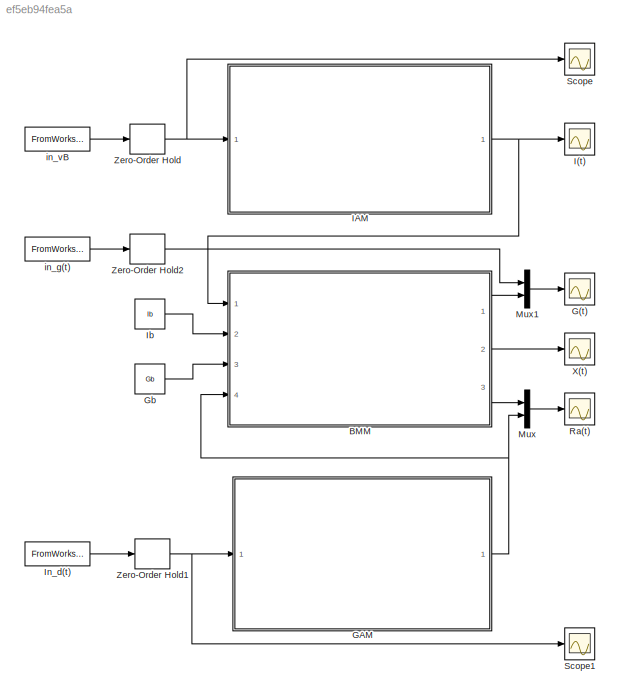
MODEL slx_ef5eb94fea5a
KIND model
CONFIG AbsTol = auto
CONFIG EnableMultiTasking = off
CONFIG FixedStep = 1
CONFIG MaxStep = auto
CONFIG MinStep = auto
CONFIG RelTol = 1e-3
CONFIG SampleTimeConstraint = Unconstrained
CONFIG SolverName = FixedStepAuto
CONFIG StartTime = 400
CONFIG StopTime = 1400
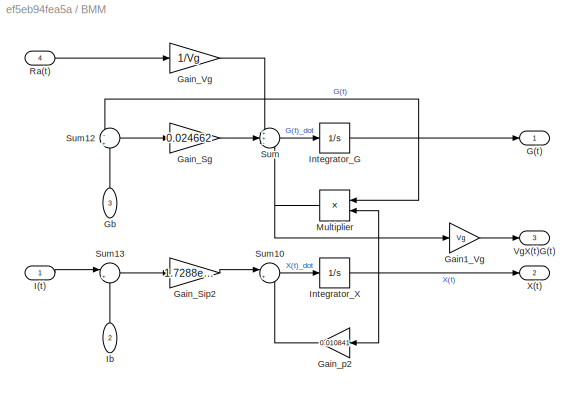
BLOCK [SubSystem] BMM
  Ports = [4, 3]
  RequestExecContextInheritance = off
BLOCK [Outport] BMM/G(t)
BLOCK [Gain] BMM/Gain1_Vg
  Gain = Vg
BLOCK [Gain] BMM/Gain_Sg
  Gain = 0.024662
  Multiplication = Matrix(K*u)
BLOCK [Gain] BMM/Gain_Sip2
  Gain = 1.7288e-05
  Multiplication = Matrix(K*u)
BLOCK [Gain] BMM/Gain_Vg
  Gain = 1/Vg
BLOCK [Gain] BMM/Gain_p2
  Gain = 0.010841
BLOCK [Inport] BMM/Gb
  NameLocation = right
  Port = 3
BLOCK [Inport] BMM/I(t)
BLOCK [Inport] BMM/Ib
  NameLocation = right
  Port = 2
BLOCK [Integrator] BMM/Integrator_G
  InitialCondition = G0
  LowerSaturationLimit = 0
  Ports = [1, 1]
  UpperSaturationLimit = 100
BLOCK [Integrator] BMM/Integrator_X
  InitialCondition = X0
  Ports = [1, 1]
BLOCK [Product] BMM/Multiplier
  Ports = [2, 1]
BLOCK [Inport] BMM/Ra(t)
  Port = 4
BLOCK [Sum] BMM/Sum
  Inputs = ++-
  Ports = [3, 1]
BLOCK [Sum] BMM/Sum10
  Inputs = |+-
  Ports = [2, 1]
BLOCK [Sum] BMM/Sum12
  Inputs = -|+
  Ports = [2, 1]
BLOCK [Sum] BMM/Sum13
  Inputs = |+-
  Ports = [2, 1]
BLOCK [Outport] BMM/VgX(t)G(t)
  Port = 3
BLOCK [Outport] BMM/X(t)
  Port = 2
BLOCK [Scope] G(t)
  Floating = off
  NumInputPorts = 1
  Ports = [1]
  ScopeSpecificationString = Simulink.scopes.TimeScopeBlockCfg('CurrentConfiguration', extmgr.ConfigurationSet(extmgr.Configuration('Core','General UI',true),extmgr.Configuration('Core','Source UI',true),extmgr.Configuration('Sources','WiredSimulink',true,'DataLoggingVariableName','G_est','DataLogging',true,'DataLoggingSaveFormat','Array'),extmgr.Configuration('Visuals','Time Domain',true,'SerializedDisplays',{struct('MinYLim...<+1574ch>
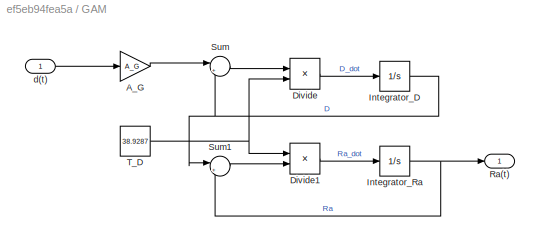
BLOCK [SubSystem] GAM
  Ports = [1, 1]
  RequestExecContextInheritance = off
BLOCK [Gain] GAM/A_G
  Gain = A_G
BLOCK [Product] GAM/Divide
  Inputs = */
  Ports = [2, 1]
BLOCK [Product] GAM/Divide1
  Inputs = /*
  Ports = [2, 1]
BLOCK [Integrator] GAM/Integrator_D
  Ports = [1, 1]
BLOCK [Integrator] GAM/Integrator_Ra
  Ports = [1, 1]
BLOCK [Outport] GAM/Ra(t)
BLOCK [Sum] GAM/Sum
  Inputs = |+-
  Ports = [2, 1]
BLOCK [Sum] GAM/Sum1
  Inputs = |+-
  Ports = [2, 1]
BLOCK [Constant] GAM/T_D
  Value = 38.9287
BLOCK [Inport] GAM/d(t)
BLOCK [Constant] Gb
  SampleTime = 0
  Value = Gb
BLOCK [Scope] I(t)
  Floating = off
  NumInputPorts = 1
  Ports = [1]
  ScopeSpecificationString = Simulink.scopes.TimeScopeBlockCfg('CurrentConfiguration', extmgr.ConfigurationSet(extmgr.Configuration('Core','General UI',true),extmgr.Configuration('Core','Source UI',true),extmgr.Configuration('Sources','WiredSimulink',true,'DataLoggingVariableName','I_est','DataLogging',true,'DataLoggingSaveFormat','Array'),extmgr.Configuration('Visuals','Time Domain',true,'SerializedDisplays',{struct('MinYLim...<+1528ch>
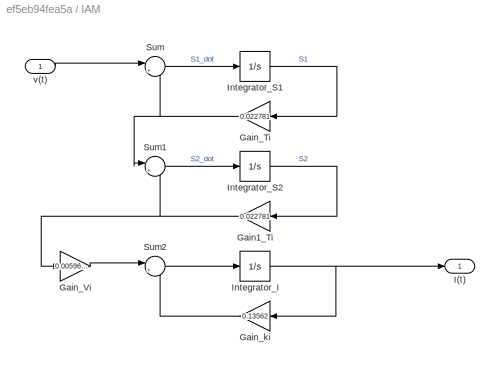
BLOCK [SubSystem] IAM
  Ports = [1, 1]
  RequestExecContextInheritance = off
BLOCK [Gain] IAM/Gain1_Ti
  Gain = 0.022781
BLOCK [Gain] IAM/Gain_Ti
  Gain = 0.022781
BLOCK [Gain] IAM/Gain_Vi
  Gain = 0.0059651
BLOCK [Gain] IAM/Gain_ki
  Gain = 0.13562
BLOCK [Outport] IAM/I(t)
BLOCK [Integrator] IAM/Integrator_I
  InitialCondition = 12.3686
  LimitOutput = on
  LowerSaturationLimit = 0
  Ports = [1, 1]
  UpperSaturationLimit = 1000
BLOCK [Integrator] IAM/Integrator_S1
  InitialCondition = 12344.6425
  Ports = [1, 1]
BLOCK [Integrator] IAM/Integrator_S2
  InitialCondition = 12344.6425
  Ports = [1, 1]
BLOCK [Sum] IAM/Sum
  Inputs = |+-
  Ports = [2, 1]
BLOCK [Sum] IAM/Sum1
  Inputs = |+-
  Ports = [2, 1]
BLOCK [Sum] IAM/Sum2
  Inputs = |+-
  Ports = [2, 1]
BLOCK [Inport] IAM/v(t)
BLOCK [Constant] Ib
  SampleTime = 0
  Value = Ib
BLOCK [FromWorkspace] In_d(t)
  VariableName = d_sim
BLOCK [Mux] Mux
  DisplayOption = bar
  Inputs = 2
  Ports = [2, 1]
BLOCK [Mux] Mux1
  DisplayOption = bar
  Inputs = 2
  Ports = [2, 1]
BLOCK [Scope] Ra(t)
  Floating = off
  NumInputPorts = 1
  Ports = [1]
  ScopeSpecificationString = Simulink.scopes.TimeScopeBlockCfg('CurrentConfiguration', extmgr.ConfigurationSet(extmgr.Configuration('Core','General UI',true),extmgr.Configuration('Core','Source UI',true),extmgr.Configuration('Sources','WiredSimulink',true,'DataLoggingVariableName','Ra_est','DataLogging',true,'DataLoggingSaveFormat','Array'),extmgr.Configuration('Visuals','Time Domain',true,'SerializedDisplays',{struct('MinYLi...<+1616ch>
BLOCK [Scope] Scope
  Floating = off
  NumInputPorts = 1
  Ports = [1]
  ScopeSpecificationString = Simulink.scopes.TimeScopeBlockCfg('CurrentConfiguration', extmgr.ConfigurationSet(extmgr.Configuration('Core','General UI',true),extmgr.Configuration('Core','Source UI',true),extmgr.Configuration('Sources','WiredSimulink',true,'DataLoggingVariableName','ScopeData1','DataLogging',true,'DataLoggingSaveFormat','Array'),extmgr.Configuration('Visuals','Time Domain',true,'SerializedDisplays',{struct('Mi...<+1524ch>
BLOCK [Scope] Scope1
  Floating = off
  NumInputPorts = 1
  Ports = [1]
  ScopeSpecificationString = Simulink.scopes.TimeScopeBlockCfg('CurrentConfiguration', extmgr.ConfigurationSet(extmgr.Configuration('Core','General UI',true),extmgr.Configuration('Core','Source UI',true),extmgr.Configuration('Sources','WiredSimulink',true,'DataLoggingVariableName','ScopeData2'),extmgr.Configuration('Visuals','Time Domain',true,'SerializedDisplays',{struct('MinYLimReal','-6.25','MaxYLimReal','56.25','YLabelRea...<+1434ch>
BLOCK [Scope] X(t)
  Floating = off
  NumInputPorts = 1
  Ports = [1]
  ScopeSpecificationString = Simulink.scopes.TimeScopeBlockCfg('CurrentConfiguration', extmgr.ConfigurationSet(extmgr.Configuration('Core','General UI',true),extmgr.Configuration('Core','Source UI',true),extmgr.Configuration('Sources','WiredSimulink',true,'DataLoggingVariableName','ScopeData2'),extmgr.Configuration('Visuals','Time Domain',true,'SerializedDisplays',{struct('MinYLimReal','-0.04833','MaxYLimReal','0.11819','YLab...<+1421ch>
BLOCK [ZeroOrderHold] Zero-Order Hold
  SampleTime = -1
BLOCK [ZeroOrderHold] Zero-Order Hold1
  SampleTime = -1
BLOCK [ZeroOrderHold] Zero-Order Hold2
  SampleTime = -1
BLOCK [FromWorkspace] in_g(t)
  VariableName = g_sim
BLOCK [FromWorkspace] in_vB
  VariableName = v_sim
LINE BMM/Gain1_Vg:1 -> BMM/VgX(t)G(t):1
LINE BMM/Gain_Sg:1 -> BMM/Sum:2
LINE BMM/Gain_Sip2:1 -> BMM/Sum10:1
LINE BMM/Gain_Vg:1 -> BMM/Sum:1
LINE BMM/Gain_p2:1 -> BMM/Sum10:2
LINE BMM/Gb:1 -> BMM/Sum12:2
LINE BMM/I(t):1 -> BMM/Sum13:1
LINE BMM/Ib:1 -> BMM/Sum13:2
NET BMM/Integrator_G:1 -> BMM/G(t):1, BMM/Multiplier:1, BMM/Sum12:1
NET BMM/Integrator_X:1 -> BMM/Gain_p2:1, BMM/Multiplier:2, BMM/X(t):1
NET BMM/Multiplier:1 -> BMM/Gain1_Vg:1, BMM/Sum:3
LINE BMM/Ra(t):1 -> BMM/Gain_Vg:1
LINE BMM/Sum10:1 -> BMM/Integrator_X:1
LINE BMM/Sum12:1 -> BMM/Gain_Sg:1
LINE BMM/Sum13:1 -> BMM/Gain_Sip2:1
LINE BMM/Sum:1 -> BMM/Integrator_G:1
LINE BMM:1 -> Mux1:2
LINE BMM:2 -> X(t):1
LINE BMM:3 -> Mux:1
LINE GAM/A_G:1 -> GAM/Sum:1
LINE GAM/Divide1:1 -> GAM/Integrator_Ra:1
LINE GAM/Divide:1 -> GAM/Integrator_D:1
NET GAM/Integrator_D:1 -> GAM/Sum1:1, GAM/Sum:2
NET GAM/Integrator_Ra:1 -> GAM/Ra(t):1, GAM/Sum1:2
LINE GAM/Sum1:1 -> GAM/Divide1:2
LINE GAM/Sum:1 -> GAM/Divide:1
NET GAM/T_D:1 -> GAM/Divide1:1, GAM/Divide:2
LINE GAM/d(t):1 -> GAM/A_G:1
NET GAM:1 -> BMM:4, Mux:2
LINE Gb:1 -> BMM:3
NET IAM/Gain1_Ti:1 -> IAM/Gain_Vi:1, IAM/Sum1:2
NET IAM/Gain_Ti:1 -> IAM/Sum1:1, IAM/Sum:2
LINE IAM/Gain_Vi:1 -> IAM/Sum2:1
LINE IAM/Gain_ki:1 -> IAM/Sum2:2
NET IAM/Integrator_I:1 -> IAM/Gain_ki:1, IAM/I(t):1
LINE IAM/Integrator_S1:1 -> IAM/Gain_Ti:1
LINE IAM/Integrator_S2:1 -> IAM/Gain1_Ti:1
LINE IAM/Sum1:1 -> IAM/Integrator_S2:1
LINE IAM/Sum2:1 -> IAM/Integrator_I:1
LINE IAM/Sum:1 -> IAM/Integrator_S1:1
LINE IAM/v(t):1 -> IAM/Sum:1
NET IAM:1 -> BMM:1, I(t):1
LINE Ib:1 -> BMM:2
LINE In_d(t):1 -> Zero-Order Hold1:1
LINE Mux1:1 -> G(t):1
LINE Mux:1 -> Ra(t):1
NET Zero-Order Hold1:1 -> GAM:1, Scope1:1
LINE Zero-Order Hold2:1 -> Mux1:1
NET Zero-Order Hold:1 -> IAM:1, Scope:1
LINE in_g(t):1 -> Zero-Order Hold2:1
LINE in_vB:1 -> Zero-Order Hold:1
note: NET lines group one-source signal fan-out (src -> all destinations, sorted); 1:1 wires keep LINE
